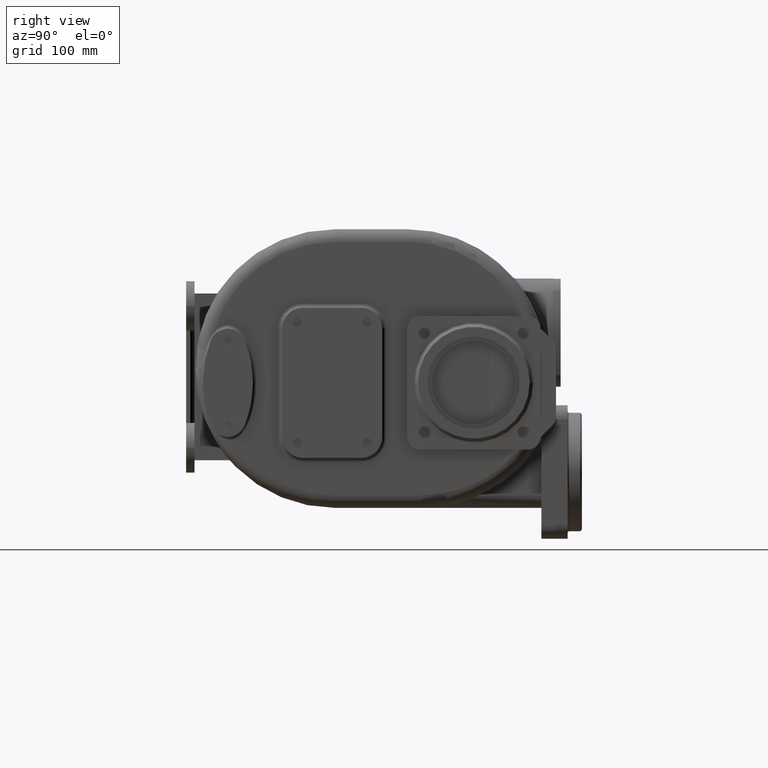
[diagram: clean part render]
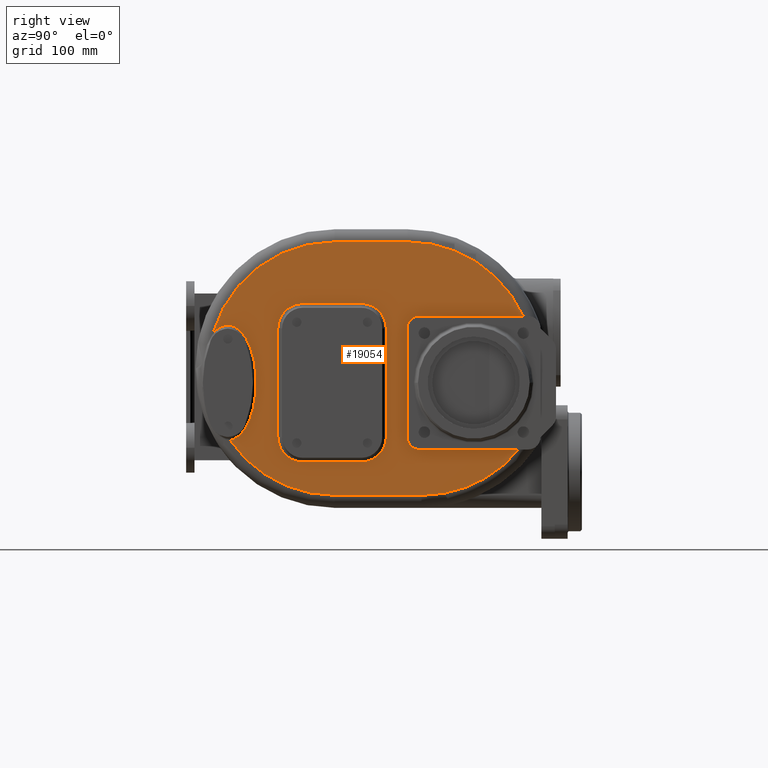
[diagram: same view with one face highlighted and labeled with its STEP entity id]
A machine part, right view. The second image highlights one B-rep face of the part: STEP entity #19054.
In plain terms, the highlighted planar face has unit normal (-1, 0, 0).
Its self-contained STEP definition (entity closure, byte-faithful):
#5165=DIRECTION('',(0.E0,1.E0,0.E0));
#5166=VECTOR('',#5165,1.190412641704E2);
#5167=CARTESIAN_POINT('',(1.8E2,2.7E2,-9.7E1));
#5168=LINE('',#5167,#5166);
#5319=DIRECTION('',(0.E0,0.E0,-1.E0));
#5320=VECTOR('',#5319,1.3E2);
#5321=CARTESIAN_POINT('',(1.8E2,2.55E2,4.8E1));
#5322=LINE('',#5321,#5320);
#5327=CARTESIAN_POINT('',(1.8E2,2.7E2,-8.2E1));
#5328=DIRECTION('',(-1.E0,0.E0,0.E0));
#5329=DIRECTION('',(0.E0,0.E0,-1.E0));
#5330=AXIS2_PLACEMENT_3D('',#5327,#5328,#5329);
#5332=CARTESIAN_POINT('',(1.8E2,4.E1,5.2E1));
#5333=CARTESIAN_POINT('',(1.800000331843E2,3.980818727470E1,5.199993962877E1));
#5334=CARTESIAN_POINT('',(1.799999845991E2,3.942480011682E1,5.199338808963E1));
#5335=CARTESIAN_POINT('',(1.800000041267E2,3.885060286425E1,5.196556070980E1));
#5336=CARTESIAN_POINT('',(1.799999988943E2,3.827678143422E1,5.191930522433E1));
#5337=CARTESIAN_POINT('',(1.800000002963E2,3.770302246160E1,5.185469433463E1));
#5338=CARTESIAN_POINT('',(1.799999999206E2,3.712898830050E1,5.177150025391E1));
#5339=CARTESIAN_POINT('',(1.800000000213E2,3.655439441187E1,5.166937378275E1));
#5340=CARTESIAN_POINT('',(1.799999999943E2,3.597899179671E1,5.154793146049E1));
#5341=CARTESIAN_POINT('',(1.800000000015E2,3.540211462222E1,5.140694735420E1));
#5342=CARTESIAN_POINT('',(1.799999999996E2,3.482310120080E1,5.124599283637E1));
#5343=CARTESIAN_POINT('',(1.800000000001E2,3.424129892006E1,5.106449656628E1));
#5344=CARTESIAN_POINT('',(1.8E2,3.365657686726E1,5.086189949844E1));
#5345=CARTESIAN_POINT('',(1.8E2,3.306934016899E1,5.063776117252E1));
#5346=CARTESIAN_POINT('',(1.8E2,3.248013854139E1,5.039163121960E1));
#5347=CARTESIAN_POINT('',(1.8E2,3.188885548453E1,5.012287420619E1));
#5348=CARTESIAN_POINT('',(1.8E2,3.129418848023E1,4.983033170392E1));
#5349=CARTESIAN_POINT('',(1.8E2,3.069517736382E1,4.951274395990E1));
#5350=CARTESIAN_POINT('',(1.8E2,3.009115941096E1,4.916881165846E1));
#5351=CARTESIAN_POINT('',(1.8E2,2.948285387504E1,4.879791862295E1));
#5352=CARTESIAN_POINT('',(1.8E2,2.887098042497E1,4.839948413577E1));
#5353=CARTESIAN_POINT('',(1.799999999999E2,2.825614514426E1,4.797287386555E1));
#5354=CARTESIAN_POINT('',(1.800000000004E2,2.763733871677E1,4.751622717343E1));
#5355=CARTESIAN_POINT('',(1.799999999985E2,2.701384605031E1,4.702767004294E1));
#5356=CARTESIAN_POINT('',(1.800000000057E2,2.638513806620E1,4.650529396619E1));
#5357=CARTESIAN_POINT('',(1.799999999788E2,2.575114861445E1,4.594744386966E1));
#5358=CARTESIAN_POINT('',(1.800000000791E2,2.511191621515E1,4.535246821145E1));
#5359=CARTESIAN_POINT('',(1.799999997050E2,2.446761445800E1,4.471885710891E1));
#5360=CARTESIAN_POINT('',(1.800000011011E2,2.381855094523E1,4.404481922097E1));
#5361=CARTESIAN_POINT('',(1.799999958908E2,2.316516593719E1,4.332840735070E1));
#5362=CARTESIAN_POINT('',(1.800000153359E2,2.250795785787E1,4.256798845231E1));
#5363=CARTESIAN_POINT('',(1.799999669558E2,2.206775618607E1,4.203031686421E1));
#5364=CARTESIAN_POINT('',(1.8E2,2.184726104059E1,4.175378615796E1));
#5366=CARTESIAN_POINT('',(1.8E2,1.68E2,0.E0));
#5367=DIRECTION('',(1.E0,0.E0,0.E0));
#5368=DIRECTION('',(0.E0,0.E0,1.E0));
#5369=AXIS2_PLACEMENT_3D('',#5366,#5367,#5368);
#5371=DIRECTION('',(0.E0,-1.E0,0.E0));
#5372=VECTOR('',#5371,8.777794898144E1);
#5373=CARTESIAN_POINT('',(1.8E2,2.557779489814E2,1.52E2));
#5374=LINE('',#5373,#5372);
#5375=CARTESIAN_POINT('',(1.8E2,2.557779489814E2,0.E0));
#5376=DIRECTION('',(1.E0,0.E0,0.E0));
#5377=DIRECTION('',(0.E0,9.100612974393E-1,4.144736842105E-1));
#5378=AXIS2_PLACEMENT_3D('',#5375,#5376,#5377);
#5380=CARTESIAN_POINT('',(1.8E2,2.720156259538E2,0.E0));
#5381=DIRECTION('',(1.E0,0.E0,0.E0));
#5382=DIRECTION('',(0.E0,0.E0,-1.E0));
#5383=AXIS2_PLACEMENT_3D('',#5380,#5381,#5382);
#5385=DIRECTION('',(0.E0,1.E0,0.E0));
#5386=VECTOR('',#5385,1.040156259538E2);
#5387=CARTESIAN_POINT('',(1.8E2,1.68E2,-1.52E2));
#5388=LINE('',#5387,#5386);
#5389=CARTESIAN_POINT('',(1.8E2,1.68E2,0.E0));
#5390=DIRECTION('',(1.E0,0.E0,0.E0));
#5391=DIRECTION('',(0.E0,-8.253686109153E-1,-5.645942402432E-1));
#5392=AXIS2_PLACEMENT_3D('',#5389,#5390,#5391);
#5394=CARTESIAN_POINT('',(1.8E2,4.254398519367E1,-8.581831490414E1));
#5395=CARTESIAN_POINT('',(1.799999576203E2,4.273448418722E1,-8.579113064837E1));
#5396=CARTESIAN_POINT('',(1.800000196685E2,4.311699007125E1,-8.572925093507E1));
#5397=CARTESIAN_POINT('',(1.799999947299E2,4.369615198677E1,-8.561888224030E1));
#5398=CARTESIAN_POINT('',(1.800000014121E2,4.427970648542E1,-8.548735146176E1));
#5399=CARTESIAN_POINT('',(1.799999996216E2,4.486738631977E1,-8.533483151979E1));
#5400=CARTESIAN_POINT('',(1.800000001014E2,4.545885354538E1,-8.516078490005E1));
#5401=CARTESIAN_POINT('',(1.799999999728E2,4.605372620474E1,-8.496488077846E1));
#5402=CARTESIAN_POINT('',(1.800000000073E2,4.665158160168E1,-8.474673163172E1));
#5403=CARTESIAN_POINT('',(1.799999999980E2,4.725185974461E1,-8.450600414516E1));
#5404=CARTESIAN_POINT('',(1.800000000005E2,4.785423712021E1,-8.424225516436E1));
#5405=CARTESIAN_POINT('',(1.799999999999E2,4.845923863383E1,-8.395456728404E1));
#5406=CARTESIAN_POINT('',(1.8E2,4.906710783786E1,-8.364194897871E1));
#5407=CARTESIAN_POINT('',(1.8E2,4.967823851880E1,-8.330341323749E1));
#5408=CARTESIAN_POINT('',(1.8E2,5.029334893937E1,-8.293767333756E1));
#5409=CARTESIAN_POINT('',(1.8E2,5.091309150415E1,-8.254330259045E1));
#5410=CARTESIAN_POINT('',(1.8E2,5.153797803444E1,-8.211879048320E1));
#5411=CARTESIAN_POINT('',(1.8E2,5.216804858170E1,-8.166279572738E1));
#5412=CARTESIAN_POINT('',(1.8E2,5.280296055975E1,-8.117419111672E1));
#5413=CARTESIAN_POINT('',(1.8E2,5.344240318969E1,-8.065167860861E1));
#5414=CARTESIAN_POINT('',(1.8E2,5.408652607022E1,-8.009349672348E1));
#5415=CARTESIAN_POINT('',(1.8E2,5.473530935171E1,-7.949794698872E1));
#5416=CARTESIAN_POINT('',(1.8E2,5.538888345341E1,-7.886313309123E1));
#5417=CARTESIAN_POINT('',(1.8E2,5.604755017724E1,-7.818685066556E1));
#5418=CARTESIAN_POINT('',(1.8E2,5.671132554390E1,-7.746666224846E1));
#5419=CARTESIAN_POINT('',(1.8E2,5.738004343081E1,-7.670023828096E1));
#5420=CARTESIAN_POINT('',(1.8E2,5.805355938730E1,-7.588524737336E1));
#5421=CARTESIAN_POINT('',(1.8E2,5.873159250727E1,-7.501911066679E1));
#5422=CARTESIAN_POINT('',(1.8E2,5.941359005206E1,-7.409922387014E1));
#5423=CARTESIAN_POINT('',(1.8E2,6.009909319418E1,-7.312303016413E1));
#5424=CARTESIAN_POINT('',(1.8E2,6.078759814060E1,-7.208764690390E1));
#5425=CARTESIAN_POINT('',(1.8E2,6.147824894362E1,-7.099013354473E1));
#5426=CARTESIAN_POINT('',(1.8E2,6.217025318667E1,-6.982776357650E1));
#5427=CARTESIAN_POINT('',(1.8E2,6.286255079838E1,-6.859761338820E1));
#5428=CARTESIAN_POINT('',(1.8E2,6.355387669675E1,-6.729682593738E1));
#5429=CARTESIAN_POINT('',(1.8E2,6.424290379719E1,-6.592285408985E1));
#5430=CARTESIAN_POINT('',(1.8E2,6.492793930763E1,-6.447298352913E1));
#5431=CARTESIAN_POINT('',(1.8E2,6.560727463214E1,-6.294503448074E1));
#5432=CARTESIAN_POINT('',(1.8E2,6.627883783383E1,-6.133678061513E1));
#5433=CARTESIAN_POINT('',(1.8E2,6.694051221516E1,-5.964658317709E1));
#5434=CARTESIAN_POINT('',(1.8E2,6.758984825433E1,-5.787294821885E1));
#5435=CARTESIAN_POINT('',(1.8E2,6.822437115398E1,-5.601502107566E1));
#5436=CARTESIAN_POINT('',(1.8E2,6.884133430897E1,-5.407212417479E1));
#5437=CARTESIAN_POINT('',(1.8E2,6.943794937927E1,-5.204444380553E1));
#5438=CARTESIAN_POINT('',(1.8E2,7.001123717127E1,-4.993241191694E1));
#5439=CARTESIAN_POINT('',(1.8E2,7.055812912224E1,-4.773761377466E1));
#5440=CARTESIAN_POINT('',(1.8E2,7.107550256937E1,-4.546208045615E1));
#5441=CARTESIAN_POINT('',(1.8E2,7.156017331873E1,-4.310889244837E1));
#5442=CARTESIAN_POINT('',(1.8E2,7.200906703540E1,-4.068185730257E1));
#5443=CARTESIAN_POINT('',(1.8E2,7.241910931263E1,-3.818550911297E1));
#5444=CARTESIAN_POINT('',(1.8E2,7.278746286882E1,-3.562544815721E1));
#5445=CARTESIAN_POINT('',(1.8E2,7.311137680005E1,-3.300769179452E1));
#5446=CARTESIAN_POINT('',(1.8E2,7.338847053111E1,-3.033940476639E1));
#5447=CARTESIAN_POINT('',(1.8E2,7.361651292697E1,-2.762790840168E1));
#5448=CARTESIAN_POINT('',(1.8E2,7.379378645438E1,-2.488161404186E1));
#5449=CARTESIAN_POINT('',(1.8E2,7.391873178365E1,-2.210904014249E1));
#5450=CARTESIAN_POINT('',(1.8E2,7.399044926425E1,-1.931934735244E1));
#5451=CARTESIAN_POINT('',(1.8E2,7.400821246141E1,-1.652191789015E1));
#5452=CARTESIAN_POINT('',(1.8E2,7.397198860098E1,-1.372614380797E1));
#5453=CARTESIAN_POINT('',(1.8E2,7.388200791742E1,-1.094151315767E1));
#5454=CARTESIAN_POINT('',(1.8E2,7.373905784398E1,-8.177305656893E0));
#5455=CARTESIAN_POINT('',(1.8E2,7.354432562118E1,-5.442295640125E0));
#5456=CARTESIAN_POINT('',(1.8E2,7.329934186452E1,-2.745244687351E0));
#5457=CARTESIAN_POINT('',(1.8E2,7.300610468834E1,-9.374905922918E-2));
#5458=CARTESIAN_POINT('',(1.8E2,7.266678991403E1,2.504551197166E0));
#5459=CARTESIAN_POINT('',(1.8E2,7.228399345032E1,5.043287509577E0));
#5460=CARTESIAN_POINT('',(1.8E2,7.186042542974E1,7.516239706657E0));
#5461=CARTESIAN_POINT('',(1.8E2,7.139905071802E1,9.918471680709E0));
#5462=CARTESIAN_POINT('',(1.8E2,7.090293042187E1,1.224541237754E1));
#5463=CARTESIAN_POINT('',(1.8E2,7.037518276257E1,1.449364794223E1));
#5464=CARTESIAN_POINT('',(1.8E2,6.981900223816E1,1.666037511705E1));
#5465=CARTESIAN_POINT('',(1.8E2,6.923747313531E1,1.874362040892E1));
#5466=CARTESIAN_POINT('',(1.8E2,6.863370028937E1,2.074231970080E1));
#5467=CARTESIAN_POINT('',(1.8E2,6.801053312788E1,2.265595108472E1));
#5468=CARTESIAN_POINT('',(1.8E2,6.737083040388E1,2.448485115161E1));
#5469=CARTESIAN_POINT('',(1.8E2,6.671713726574E1,2.622961258104E1));
#5470=CARTESIAN_POINT('',(1.8E2,6.605200962771E1,2.789153965201E1));
#5471=CARTESIAN_POINT('',(1.8E2,6.537765883437E1,2.947203370804E1));
#5472=CARTESIAN_POINT('',(1.8E2,6.469629336768E1,3.097311764243E1));
#5473=CARTESIAN_POINT('',(1.8E2,6.400972319486E1,3.239686677620E1));
#5474=CARTESIAN_POINT('',(1.8E2,6.331979487557E1,3.374574153604E1));
#5475=CARTESIAN_POINT('',(1.8E2,6.262798417715E1,3.502223350108E1));
#5476=CARTESIAN_POINT('',(1.8E2,6.193570484667E1,3.622902205492E1));
#5477=CARTESIAN_POINT('',(1.8E2,6.124417041570E1,3.736897600279E1));
#5478=CARTESIAN_POINT('',(1.8E2,6.055426456618E1,3.844484470499E1));
#5479=CARTESIAN_POINT('',(1.8E2,5.986692697393E1,3.945962802224E1));
#5480=CARTESIAN_POINT('',(1.8E2,5.918279132487E1,4.041617193559E1));
#5481=CARTESIAN_POINT('',(1.8E2,5.850222265604E1,4.131732763257E1));
#5482=CARTESIAN_POINT('',(1.8E2,5.782577590521E1,4.216583631149E1));
#5483=CARTESIAN_POINT('',(1.8E2,5.715382651690E1,4.296423204210E1));
#5484=CARTESIAN_POINT('',(1.8E2,5.648646724367E1,4.371503334128E1));
#5485=CARTESIAN_POINT('',(1.8E2,5.582395852801E1,4.442062128787E1));
#5486=CARTESIAN_POINT('',(1.8E2,5.516649480411E1,4.508317632765E1));
#5487=CARTESIAN_POINT('',(1.8E2,5.451402071744E1,4.570483566551E1));
#5488=CARTESIAN_POINT('',(1.8E2,5.386657747789E1,4.628762549572E1));
#5489=CARTESIAN_POINT('',(1.8E2,5.322418392843E1,4.683340020472E1));
#5490=CARTESIAN_POINT('',(1.8E2,5.258665287307E1,4.734396916504E1));
#5491=CARTESIAN_POINT('',(1.8E2,5.195389118480E1,4.782098865577E1));
#5492=CARTESIAN_POINT('',(1.8E2,5.132582205910E1,4.826597028932E1));
#5493=CARTESIAN_POINT('',(1.8E2,5.070220400795E1,4.868038938240E1));
#5494=CARTESIAN_POINT('',(1.8E2,5.008290132412E1,4.906553867028E1));
#5495=CARTESIAN_POINT('',(1.8E2,4.946779916625E1,4.942261879757E1));
#5496=CARTESIAN_POINT('',(1.8E2,4.885667068490E1,4.975278988079E1));
#5497=CARTESIAN_POINT('',(1.8E2,4.824923015791E1,5.005711219399E1));
#5498=CARTESIAN_POINT('',(1.8E2,4.764516114473E1,5.033660881168E1));
#5499=CARTESIAN_POINT('',(1.8E2,4.704409639167E1,5.059219609169E1));
#5500=CARTESIAN_POINT('',(1.8E2,4.644599054948E1,5.082452876819E1));
#5501=CARTESIAN_POINT('',(1.8E2,4.585080263081E1,5.103430381059E1));
#5502=CARTESIAN_POINT('',(1.8E2,4.525838813260E1,5.122216319776E1));
#5503=CARTESIAN_POINT('',(1.800000000001E2,4.466813237689E1,5.138874161680E1));
#5504=CARTESIAN_POINT('',(1.799999999997E2,4.407948632314E1,5.153465075716E1));
#5505=CARTESIAN_POINT('',(1.800000000010E2,4.349171051878E1,5.166042365702E1));
#5506=CARTESIAN_POINT('',(1.799999999961E2,4.290495319596E1,5.176622014298E1));
#5507=CARTESIAN_POINT('',(1.800000000145E2,4.231962804205E1,5.185219749989E1));
#5508=CARTESIAN_POINT('',(1.799999999460E2,4.173609435400E1,5.191864558629E1));
#5509=CARTESIAN_POINT('',(1.800000002016E2,4.115469489085E1,5.196579453957E1));
#5510=CARTESIAN_POINT('',(1.799999992475E2,4.057569381646E1,5.199379531186E1));
#5511=CARTESIAN_POINT('',(1.800000016214E2,4.019159750974E1,5.199999723067E1));
#5512=CARTESIAN_POINT('',(1.8E2,4.E1,5.2E1));
#5514=DIRECTION('',(0.E0,3.868850539123E-12,1.E0));
#5515=VECTOR('',#5514,1.299999999986E2);
#5516=CARTESIAN_POINT('',(1.8E2,2.299999999991E2,-8.199999999912E1));
#5517=LINE('',#5516,#5515);
#5518=CARTESIAN_POINT('',(1.8E2,2.E2,4.8E1));
#5519=DIRECTION('',(1.E0,0.E0,0.E0));
#5520=DIRECTION('',(0.E0,1.E0,0.E0));
#5521=AXIS2_PLACEMENT_3D('',#5518,#5519,#5520);
#5523=DIRECTION('',(0.E0,-1.E0,7.185820192995E-12));
#5524=VECTOR('',#5523,6.999999999856E1);
#5525=CARTESIAN_POINT('',(1.8E2,1.999999999991E2,7.799999999915E1));
#5526=LINE('',#5525,#5524);
#5527=CARTESIAN_POINT('',(1.8E2,1.3E2,4.8E1));
#5528=DIRECTION('',(1.E0,0.E0,0.E0));
#5529=DIRECTION('',(0.E0,0.E0,1.E0));
#5530=AXIS2_PLACEMENT_3D('',#5527,#5528,#5529);
#5532=DIRECTION('',(0.E0,-3.868959853390E-12,-1.E0));
#5533=VECTOR('',#5532,1.299999999986E2);
#5534=CARTESIAN_POINT('',(1.8E2,1.000000000009E2,4.799999999912E1));
#5535=LINE('',#5534,#5533);
#5536=CARTESIAN_POINT('',(1.8E2,1.3E2,-8.2E1));
#5537=DIRECTION('',(1.E0,0.E0,0.E0));
#5538=DIRECTION('',(0.E0,-1.E0,0.E0));
#5539=AXIS2_PLACEMENT_3D('',#5536,#5537,#5538);
#5541=DIRECTION('',(0.E0,1.E0,-7.185617180785E-12));
#5542=VECTOR('',#5541,6.999999999856E1);
#5543=CARTESIAN_POINT('',(1.8E2,1.300000000009E2,-1.119999999991E2));
#5544=LINE('',#5543,#5542);
#5545=CARTESIAN_POINT('',(1.8E2,2.E2,-8.2E1));
#5546=DIRECTION('',(1.E0,0.E0,0.E0));
#5547=DIRECTION('',(0.E0,0.E0,-1.E0));
#5548=AXIS2_PLACEMENT_3D('',#5545,#5546,#5547);
#6801=DIRECTION('',(0.E0,-1.E0,0.E0));
#6802=VECTOR('',#6801,1.241072661922E2);
#6803=CARTESIAN_POINT('',(1.8E2,3.941072661922E2,6.3E1));
#6804=LINE('',#6803,#6802);
#6809=CARTESIAN_POINT('',(1.8E2,2.7E2,4.8E1));
#6810=DIRECTION('',(-1.E0,0.E0,0.E0));
#6811=DIRECTION('',(0.E0,-1.E0,0.E0));
#6812=AXIS2_PLACEMENT_3D('',#6809,#6810,#6811);
#11601=CARTESIAN_POINT('',(1.8E2,2.55E2,4.8E1));
#11602=CARTESIAN_POINT('',(1.8E2,2.55E2,-8.2E1));
#11603=VERTEX_POINT('',#11601);
#11604=VERTEX_POINT('',#11602);
#11605=CARTESIAN_POINT('',(1.8E2,2.7E2,-9.7E1));
#11606=VERTEX_POINT('',#11605);
#11607=CARTESIAN_POINT('',(1.8E2,2.7E2,6.3E1));
#11608=VERTEX_POINT('',#11607);
#11621=CARTESIAN_POINT('',(1.8E2,2.720156259538E2,-1.52E2));
#11622=CARTESIAN_POINT('',(1.8E2,3.890412641704E2,-9.7E1));
#11623=VERTEX_POINT('',#11621);
#11624=VERTEX_POINT('',#11622);
#11625=CARTESIAN_POINT('',(1.8E2,1.68E2,-1.52E2));
#11626=VERTEX_POINT('',#11625);
#11631=CARTESIAN_POINT('',(1.8E2,2.557779489814E2,1.52E2));
#11632=CARTESIAN_POINT('',(1.8E2,1.68E2,1.52E2));
#11633=VERTEX_POINT('',#11631);
#11634=VERTEX_POINT('',#11632);
#11637=CARTESIAN_POINT('',(1.8E2,3.941072661922E2,6.3E1));
#11638=VERTEX_POINT('',#11637);
#11697=VERTEX_POINT('',#5332);
#11698=VERTEX_POINT('',#5364);
#11700=VERTEX_POINT('',#5394);
#11710=CARTESIAN_POINT('',(1.8E2,2.299999999991E2,-8.199999999912E1));
#11711=CARTESIAN_POINT('',(1.8E2,2.299999999996E2,4.799999999944E1));
#11712=VERTEX_POINT('',#11710);
#11713=VERTEX_POINT('',#11711);
#11714=CARTESIAN_POINT('',(1.8E2,2.E2,7.8E1));
#11715=VERTEX_POINT('',#11714);
#11718=CARTESIAN_POINT('',(1.8E2,1.300000000006E2,7.799999999965E1));
#11719=VERTEX_POINT('',#11718);
#11722=CARTESIAN_POINT('',(1.8E2,1.E2,4.8E1));
#11723=VERTEX_POINT('',#11722);
#11726=CARTESIAN_POINT('',(1.8E2,1.000000000004E2,-8.199999999944E1));
#11727=VERTEX_POINT('',#11726);
#11730=CARTESIAN_POINT('',(1.8E2,2.E2,-1.12E2));
#11731=VERTEX_POINT('',#11730);
#11734=CARTESIAN_POINT('',(1.8E2,1.300000000009E2,-1.119999999991E2));
#11735=VERTEX_POINT('',#11734);
#19006=CARTESIAN_POINT('',(1.8E2,1.7E2,0.E0));
#19007=DIRECTION('',(-1.E0,0.E0,0.E0));
#19008=DIRECTION('',(0.E0,0.E0,1.E0));
#19009=AXIS2_PLACEMENT_3D('',#19006,#19007,#19008);
#19010=PLANE('',#19009);
#19012=ORIENTED_EDGE('',*,*,#19011,.T.);
#19014=ORIENTED_EDGE('',*,*,#19013,.F.);
#19016=ORIENTED_EDGE('',*,*,#19015,.F.);
#19018=ORIENTED_EDGE('',*,*,#19017,.F.);
#19020=ORIENTED_EDGE('',*,*,#19019,.T.);
#19022=ORIENTED_EDGE('',*,*,#19021,.F.);
#19023=ORIENTED_EDGE('',*,*,#18986,.T.);
#19024=ORIENTED_EDGE('',*,*,#18998,.F.);
#19025=ORIENTED_EDGE('',*,*,#18803,.T.);
#19027=ORIENTED_EDGE('',*,*,#19026,.F.);
#19029=ORIENTED_EDGE('',*,*,#19028,.F.);
#19031=ORIENTED_EDGE('',*,*,#19030,.F.);
#19033=ORIENTED_EDGE('',*,*,#19032,.T.);
#19034=EDGE_LOOP('',(#19012,#19014,#19016,#19018,#19020,#19022,#19023,#19024,
#19025,#19027,#19029,#19031,#19033));
#19035=FACE_OUTER_BOUND('',#19034,.F.);
#19037=ORIENTED_EDGE('',*,*,#19036,.T.);
#19039=ORIENTED_EDGE('',*,*,#19038,.T.);
#19041=ORIENTED_EDGE('',*,*,#19040,.T.);
#19043=ORIENTED_EDGE('',*,*,#19042,.T.);
#19045=ORIENTED_EDGE('',*,*,#19044,.T.);
#19047=ORIENTED_EDGE('',*,*,#19046,.T.);
#19049=ORIENTED_EDGE('',*,*,#19048,.T.);
#19051=ORIENTED_EDGE('',*,*,#19050,.T.);
#19052=EDGE_LOOP('',(#19037,#19039,#19041,#19043,#19045,#19047,#19049,#19051));
#19053=FACE_BOUND('',#19052,.F.);
#19054=ADVANCED_FACE('',(#19035,#19053),#19010,.F.);
#5331=CIRCLE('',#5330,1.5E1);
#5365=B_SPLINE_CURVE_WITH_KNOTS('',3,(#5332,#5333,#5334,#5335,#5336,#5337,#5338,
#5339,#5340,#5341,#5342,#5343,#5344,#5345,#5346,#5347,#5348,#5349,#5350,#5351,
#5352,#5353,#5354,#5355,#5356,#5357,#5358,#5359,#5360,#5361,#5362,#5363,#5364),
.UNSPECIFIED.,.F.,.F.,(4,1,1,1,1,1,1,1,1,1,1,1,1,1,1,1,1,1,1,1,1,1,1,1,1,1,1,1,
1,1,4),(0.E0,3.333333333333E-2,6.666666666667E-2,1.E-1,1.333333333333E-1,
1.666666666667E-1,2.E-1,2.333333333333E-1,2.666666666667E-1,3.E-1,
3.333333333333E-1,3.666666666667E-1,4.E-1,4.333333333333E-1,4.666666666667E-1,
5.E-1,5.333333333333E-1,5.666666666667E-1,6.E-1,6.333333333333E-1,
6.666666666667E-1,7.E-1,7.333333333333E-1,7.666666666667E-1,8.E-1,
8.333333333333E-1,8.666666666667E-1,9.E-1,9.333333333333E-1,9.666666666667E-1,
1.E0),.UNSPECIFIED.);
#5370=CIRCLE('',#5369,1.52E2);
#5379=CIRCLE('',#5378,1.52E2);
#5384=CIRCLE('',#5383,1.52E2);
#5393=CIRCLE('',#5392,1.52E2);
#5513=B_SPLINE_CURVE_WITH_KNOTS('',3,(#5394,#5395,#5396,#5397,#5398,#5399,#5400,
#5401,#5402,#5403,#5404,#5405,#5406,#5407,#5408,#5409,#5410,#5411,#5412,#5413,
#5414,#5415,#5416,#5417,#5418,#5419,#5420,#5421,#5422,#5423,#5424,#5425,#5426,
#5427,#5428,#5429,#5430,#5431,#5432,#5433,#5434,#5435,#5436,#5437,#5438,#5439,
#5440,#5441,#5442,#5443,#5444,#5445,#5446,#5447,#5448,#5449,#5450,#5451,#5452,
#5453,#5454,#5455,#5456,#5457,#5458,#5459,#5460,#5461,#5462,#5463,#5464,#5465,
#5466,#5467,#5468,#5469,#5470,#5471,#5472,#5473,#5474,#5475,#5476,#5477,#5478,
#5479,#5480,#5481,#5482,#5483,#5484,#5485,#5486,#5487,#5488,#5489,#5490,#5491,
#5492,#5493,#5494,#5495,#5496,#5497,#5498,#5499,#5500,#5501,#5502,#5503,#5504,
#5505,#5506,#5507,#5508,#5509,#5510,#5511,#5512),.UNSPECIFIED.,.F.,.F.,(4,1,1,1,
1,1,1,1,1,1,1,1,1,1,1,1,1,1,1,1,1,1,1,1,1,1,1,1,1,1,1,1,1,1,1,1,1,1,1,1,1,1,1,1,
1,1,1,1,1,1,1,1,1,1,1,1,1,1,1,1,1,1,1,1,1,1,1,1,1,1,1,1,1,1,1,1,1,1,1,1,1,1,1,1,
1,1,1,1,1,1,1,1,1,1,1,1,1,1,1,1,1,1,1,1,1,1,1,1,1,1,1,1,1,1,1,1,4),(0.E0,
8.620689655172E-3,1.724137931034E-2,2.586206896552E-2,3.448275862069E-2,
4.310344827586E-2,5.172413793103E-2,6.034482758621E-2,6.896551724138E-2,
7.758620689655E-2,8.620689655172E-2,9.482758620690E-2,1.034482758621E-1,
1.120689655172E-1,1.206896551724E-1,1.293103448276E-1,1.379310344828E-1,
1.465517241379E-1,1.551724137931E-1,1.637931034483E-1,1.724137931034E-1,
1.810344827586E-1,1.896551724138E-1,1.982758620690E-1,2.068965517241E-1,
2.155172413793E-1,2.241379310345E-1,2.327586206897E-1,2.413793103448E-1,2.5E-1,
2.586206896552E-1,2.672413793103E-1,2.758620689655E-1,2.844827586207E-1,
2.931034482759E-1,3.017241379310E-1,3.103448275862E-1,3.189655172414E-1,
3.275862068966E-1,3.362068965517E-1,3.448275862069E-1,3.534482758621E-1,
3.620689655172E-1,3.706896551724E-1,3.793103448276E-1,3.879310344828E-1,
3.965517241379E-1,4.051724137931E-1,4.137931034483E-1,4.224137931034E-1,
4.310344827586E-1,4.396551724138E-1,4.482758620690E-1,4.568965517241E-1,
4.655172413793E-1,4.741379310345E-1,4.827586206897E-1,4.913793103448E-1,5.E-1,
5.086206896552E-1,5.172413793103E-1,5.258620689655E-1,5.344827586207E-1,
5.431034482759E-1,5.517241379310E-1,5.603448275862E-1,5.689655172414E-1,
5.775862068966E-1,5.862068965517E-1,5.948275862069E-1,6.034482758621E-1,
6.120689655172E-1,6.206896551724E-1,6.293103448276E-1,6.379310344828E-1,
6.465517241379E-1,6.551724137931E-1,6.637931034483E-1,6.724137931034E-1,
6.810344827586E-1,6.896551724138E-1,6.982758620690E-1,7.068965517241E-1,
7.155172413793E-1,7.241379310345E-1,7.327586206897E-1,7.413793103448E-1,7.5E-1,
7.586206896552E-1,7.672413793103E-1,7.758620689655E-1,7.844827586207E-1,
7.931034482759E-1,8.017241379310E-1,8.103448275862E-1,8.189655172414E-1,
8.275862068966E-1,8.362068965517E-1,8.448275862069E-1,8.534482758621E-1,
8.620689655172E-1,8.706896551724E-1,8.793103448276E-1,8.879310344828E-1,
8.965517241379E-1,9.051724137931E-1,9.137931034483E-1,9.224137931034E-1,
9.310344827586E-1,9.396551724138E-1,9.482758620690E-1,9.568965517241E-1,
9.655172413793E-1,9.741379310345E-1,9.827586206897E-1,9.913793103448E-1,1.E0),
.UNSPECIFIED.);
#5522=CIRCLE('',#5521,3.E1);
#5531=CIRCLE('',#5530,3.E1);
#5540=CIRCLE('',#5539,3.E1);
#5549=CIRCLE('',#5548,3.E1);
#6813=CIRCLE('',#6812,1.5E1);
#18803=EDGE_CURVE('',#11606,#11624,#5168,.T.);
#18986=EDGE_CURVE('',#11603,#11604,#5322,.T.);
#18998=EDGE_CURVE('',#11606,#11604,#5331,.T.);
#19011=EDGE_CURVE('',#11697,#11698,#5365,.T.);
#19013=EDGE_CURVE('',#11634,#11698,#5370,.T.);
#19015=EDGE_CURVE('',#11633,#11634,#5374,.T.);
#19017=EDGE_CURVE('',#11638,#11633,#5379,.T.);
#19019=EDGE_CURVE('',#11638,#11608,#6804,.T.);
#19021=EDGE_CURVE('',#11603,#11608,#6813,.T.);
#19026=EDGE_CURVE('',#11623,#11624,#5384,.T.);
#19028=EDGE_CURVE('',#11626,#11623,#5388,.T.);
#19030=EDGE_CURVE('',#11700,#11626,#5393,.T.);
#19032=EDGE_CURVE('',#11700,#11697,#5513,.T.);
#19036=EDGE_CURVE('',#11712,#11713,#5517,.T.);
#19038=EDGE_CURVE('',#11713,#11715,#5522,.T.);
#19040=EDGE_CURVE('',#11715,#11719,#5526,.T.);
#19042=EDGE_CURVE('',#11719,#11723,#5531,.T.);
#19044=EDGE_CURVE('',#11723,#11727,#5535,.T.);
#19046=EDGE_CURVE('',#11727,#11735,#5540,.T.);
#19048=EDGE_CURVE('',#11735,#11731,#5544,.T.);
#19050=EDGE_CURVE('',#11731,#11712,#5549,.T.);